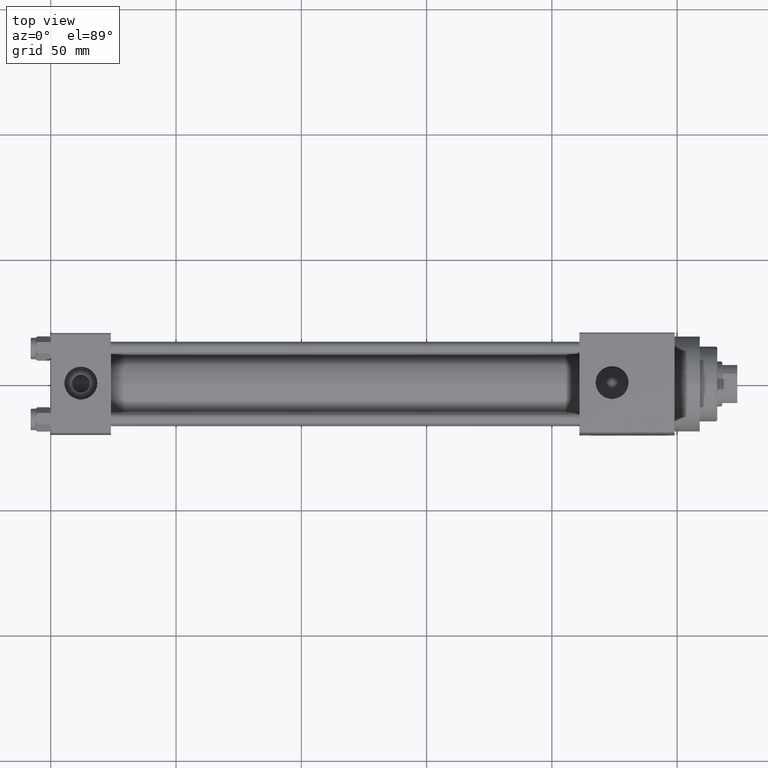
[diagram: clean part render]
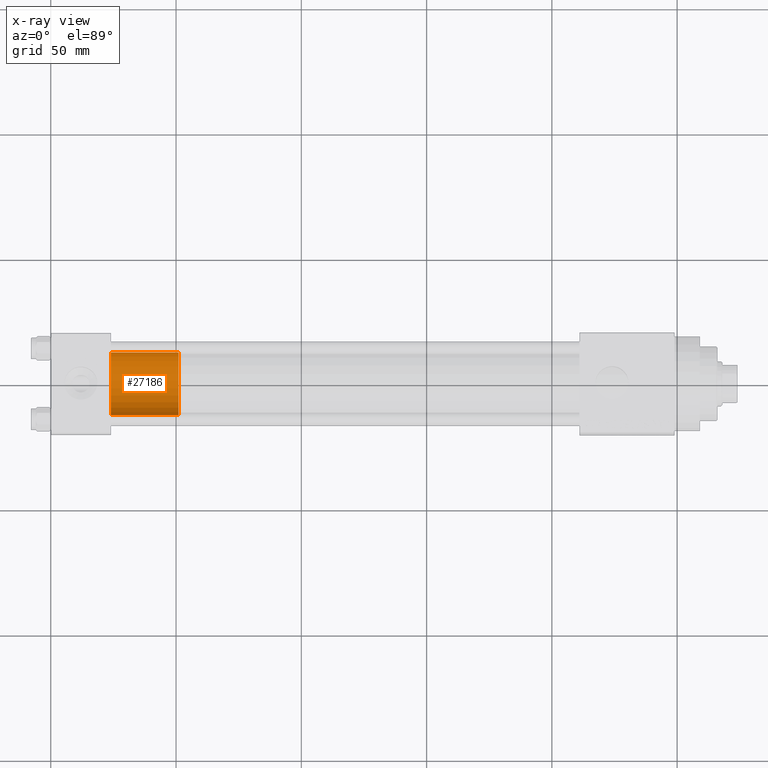
[diagram: x-ray — body ghosted, one internal face saturated and labeled with its STEP entity id]
A machine part, top view, then the same camera in x-ray: the body is ghosted and one INTERNAL B-rep face — a face not visible from any outside direction — is saturated and labeled: STEP entity #27186.
In plain terms, the highlighted cylindrical surface (edge-blend (fillet) strip) has radius 12.5 mm, axis along (-1, 0, 0).
Its self-contained STEP definition (entity closure, byte-faithful):
#1114 = VERTEX_POINT ( 'NONE', #28555 ) ;
#2990 = DIRECTION ( 'NONE',  ( -1.000000000000000000, 0.000000000000000000, 0.000000000000000000 ) ) ;
#3257 = CARTESIAN_POINT ( 'NONE',  ( -12.50000000000000000, 0.000000000000000000, 27.00000000000000000 ) ) ;
#5466 = AXIS2_PLACEMENT_3D ( 'NONE', #10829, #18208, #2990 ) ;
#6180 = CIRCLE ( 'NONE', #29784, 12.50000000000000000 ) ;
#6309 = AXIS2_PLACEMENT_3D ( 'NONE', #34977, #20200, #34743 ) ;
#6651 = EDGE_CURVE ( 'NONE', #30266, #24940, #6180, .T. ) ;
#10459 = CARTESIAN_POINT ( 'NONE',  ( 12.50000000000000000, 1.530808498934191521E-15, 27.00000000000000000 ) ) ;
#10829 = CARTESIAN_POINT ( 'NONE',  ( 0.000000000000000000, 0.000000000000000000, 27.00000000000000000 ) ) ;
#10854 = CIRCLE ( 'NONE', #6309, 12.50000000000000000 ) ;
#10998 = EDGE_CURVE ( 'NONE', #17550, #1114, #10854, .T. ) ;
#13774 = ORIENTED_EDGE ( 'NONE', *, *, #6651, .F. ) ;
#13918 = FACE_OUTER_BOUND ( 'NONE', #46091, .T. ) ;
#14832 = VECTOR ( 'NONE', #29130, 1000.000000000000000 ) ;
#16889 = CARTESIAN_POINT ( 'NONE',  ( -12.50000000000000000, 0.000000000000000000, 27.00000000000000000 ) ) ;
#17550 = VERTEX_POINT ( 'NONE', #43662 ) ;
#18208 = DIRECTION ( 'NONE',  ( -0.000000000000000000, -0.000000000000000000, -1.000000000000000000 ) ) ;
#18718 = ORIENTED_EDGE ( 'NONE', *, *, #24638, .F. ) ;
#20200 = DIRECTION ( 'NONE',  ( 0.000000000000000000, 0.000000000000000000, 1.000000000000000000 ) ) ;
#22892 = VECTOR ( 'NONE', #35021, 1000.000000000000000 ) ;
#24638 = EDGE_CURVE ( 'NONE', #24940, #1114, #24990, .T. ) ;
#24940 = VERTEX_POINT ( 'NONE', #3257 ) ;
#24990 = LINE ( 'NONE', #16889, #22892 ) ;
#26027 = CARTESIAN_POINT ( 'NONE',  ( 12.50000000000000000, 1.530808498934191521E-15, 27.00000000000000000 ) ) ;
#27186 = ADVANCED_FACE ( 'NONE', ( #13918 ), #43485, .T. ) ;
#28555 = CARTESIAN_POINT ( 'NONE',  ( -12.50000000000000000, 0.000000000000000000, 0.000000000000000000 ) ) ;
#28893 = LINE ( 'NONE', #26027, #14832 ) ;
#29130 = DIRECTION ( 'NONE',  ( -0.000000000000000000, -0.000000000000000000, -1.000000000000000000 ) ) ;
#29233 = DIRECTION ( 'NONE',  ( 1.000000000000000000, 0.000000000000000000, 0.000000000000000000 ) ) ;
#29784 = AXIS2_PLACEMENT_3D ( 'NONE', #46856, #36384, #29233 ) ;
#30266 = VERTEX_POINT ( 'NONE', #10459 ) ;
#34019 = ORIENTED_EDGE ( 'NONE', *, *, #10998, .T. ) ;
#34743 = DIRECTION ( 'NONE',  ( 1.000000000000000000, 0.000000000000000000, 0.000000000000000000 ) ) ;
#34977 = CARTESIAN_POINT ( 'NONE',  ( 0.000000000000000000, 0.000000000000000000, 0.000000000000000000 ) ) ;
#35021 = DIRECTION ( 'NONE',  ( -0.000000000000000000, -0.000000000000000000, -1.000000000000000000 ) ) ;
#36384 = DIRECTION ( 'NONE',  ( 0.000000000000000000, 0.000000000000000000, 1.000000000000000000 ) ) ;
#39644 = EDGE_CURVE ( 'NONE', #30266, #17550, #28893, .T. ) ;
#41307 = ORIENTED_EDGE ( 'NONE', *, *, #39644, .T. ) ;
#43485 = CYLINDRICAL_SURFACE ( 'NONE', #5466, 12.50000000000000000 ) ;
#43662 = CARTESIAN_POINT ( 'NONE',  ( 12.50000000000000000, 1.530808498934191521E-15, 0.000000000000000000 ) ) ;
#46091 = EDGE_LOOP ( 'NONE', ( #13774, #41307, #34019, #18718 ) ) ;
#46856 = CARTESIAN_POINT ( 'NONE',  ( 0.000000000000000000, 0.000000000000000000, 27.00000000000000000 ) ) ;